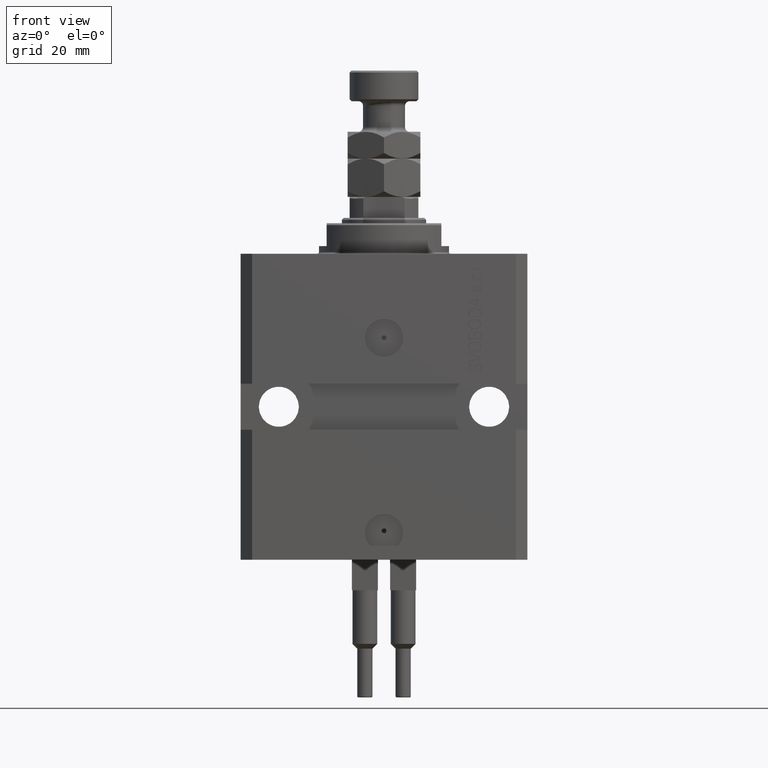
[diagram: clean part render]
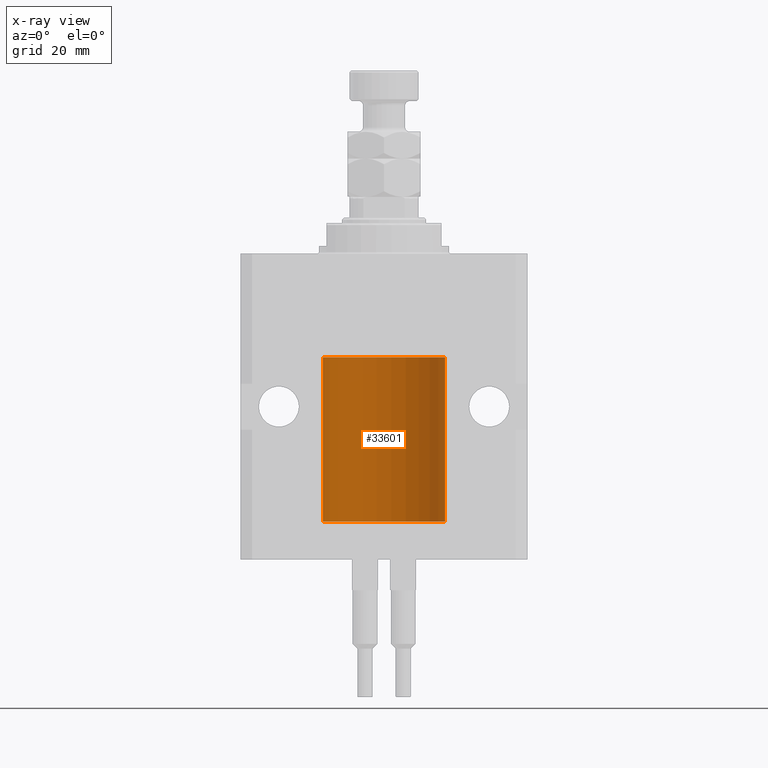
[diagram: x-ray — body ghosted, one internal face saturated and labeled with its STEP entity id]
A machine part, front view, then the same camera in x-ray: the body is ghosted and one INTERNAL B-rep face — a face not visible from any outside direction — is saturated and labeled: STEP entity #33601.
In plain terms, the highlighted cylindrical surface (partial cylindrical patch) has radius 16 mm, axis along (0, 0, 1).
Its self-contained STEP definition (entity closure, byte-faithful):
#167 = B_SPLINE_CURVE_WITH_KNOTS ( 'NONE', 3,
 ( #29941, #25955, #18704, #7254, #14724, #41418, #44888, #26444, #40922, #10258, #6763, #33922, #48639, #41657 ),
 .UNSPECIFIED., .F., .F.,
 ( 4, 2, 2, 2, 2, 2, 4 ),
 ( 9.902737362640428303E-19, 0.0002442776652680895785, 0.0004885553305361781812, 0.0009771106610723552782, 0.001221388326340464752, 0.001465665991608574008, 0.001954221322144763465 ),
 .UNSPECIFIED. ) ;
#708 = CIRCLE ( 'NONE', #12641, 16.00000000000000000 ) ;
#3318 = VECTOR ( 'NONE', #34361, 1000.000000000000000 ) ;
#4193 = CARTESIAN_POINT ( 'NONE',  ( -16.00000000000000000, 1.959434878635765131E-15, -70.09999999999999432 ) ) ;
#5071 = CARTESIAN_POINT ( 'NONE',  ( -16.00000000000000000, 1.959434878635765131E-15, -27.10000000000000142 ) ) ;
#5559 = VERTEX_POINT ( 'NONE', #12890 ) ;
#6156 = DIRECTION ( 'NONE',  ( 1.000000000000000000, 0.000000000000000000, 0.000000000000000000 ) ) ;
#6278 = LINE ( 'NONE', #13756, #13724 ) ;
#6763 = CARTESIAN_POINT ( 'NONE',  ( -15.99228023727723702, 0.5003781296993395911, -68.38347829554236057 ) ) ;
#7022 = ORIENTED_EDGE ( 'NONE', *, *, #43895, .T. ) ;
#7254 = CARTESIAN_POINT ( 'NONE',  ( -15.99707730059171240, 0.3150375992092334654, -67.45402333202571299 ) ) ;
#8320 = CARTESIAN_POINT ( 'NONE',  ( -16.00000000000000000, -9.346608026143465119E-15, -67.37500000000000000 ) ) ;
#8453 = CARTESIAN_POINT ( 'NONE',  ( 0.000000000000000000, 0.000000000000000000, -70.09999999999999432 ) ) ;
#9710 = AXIS2_PLACEMENT_3D ( 'NONE', #25100, #40314, #6156 ) ;
#10119 = EDGE_CURVE ( 'NONE', #36604, #35602, #708, .T. ) ;
#10258 = CARTESIAN_POINT ( 'NONE',  ( -15.99070426498502862, 0.5462220647145645813, -68.31460064614141459 ) ) ;
#11100 = ORIENTED_EDGE ( 'NONE', *, *, #20234, .T. ) ;
#12641 = AXIS2_PLACEMENT_3D ( 'NONE', #8453, #30883, #42846 ) ;
#12878 = ORIENTED_EDGE ( 'NONE', *, *, #20927, .F. ) ;
#12890 = CARTESIAN_POINT ( 'NONE',  ( -16.00000000000013145, 3.685127046438747128E-13, -68.62500000000343903 ) ) ;
#13461 = VERTEX_POINT ( 'NONE', #22770 ) ;
#13724 = VECTOR ( 'NONE', #48151, 1000.000000000000000 ) ;
#13756 = CARTESIAN_POINT ( 'NONE',  ( -16.00000000000000000, 1.959434878635765131E-15, -70.09999999999999432 ) ) ;
#14699 = CARTESIAN_POINT ( 'NONE',  ( 16.00000000000000000, 0.000000000000000000, -70.09999999999999432 ) ) ;
#14724 = CARTESIAN_POINT ( 'NONE',  ( -15.99548640841682712, 0.3843705577988820732, -67.50046628527007897 ) ) ;
#16226 = FACE_OUTER_BOUND ( 'NONE', #34783, .T. ) ;
#16679 = VECTOR ( 'NONE', #29917, 1000.000000000000000 ) ;
#18442 = LINE ( 'NONE', #14699, #16679 ) ;
#18681 = CARTESIAN_POINT ( 'NONE',  ( 16.00000000000000000, 0.000000000000000000, -70.09999999999999432 ) ) ;
#18704 = CARTESIAN_POINT ( 'NONE',  ( -15.99934216141748244, 0.1636497843296345067, -67.39126528029308361 ) ) ;
#19971 = CARTESIAN_POINT ( 'NONE',  ( 0.000000000000000000, 0.000000000000000000, -70.09999999999999432 ) ) ;
#20081 = EDGE_CURVE ( 'NONE', #35602, #5559, #20129, .T. ) ;
#20129 = LINE ( 'NONE', #4193, #3318 ) ;
#20234 = EDGE_CURVE ( 'NONE', #13461, #35984, #31986, .T. ) ;
#20927 = EDGE_CURVE ( 'NONE', #26950, #35984, #6278, .T. ) ;
#22770 = CARTESIAN_POINT ( 'NONE',  ( 16.00000000000000000, 0.000000000000000000, -27.10000000000000142 ) ) ;
#25100 = CARTESIAN_POINT ( 'NONE',  ( 0.000000000000000000, 0.000000000000000000, -27.10000000000000142 ) ) ;
#25955 = CARTESIAN_POINT ( 'NONE',  ( -16.00000000000000711, 0.08259886010189028405, -67.37500000000001421 ) ) ;
#26444 = CARTESIAN_POINT ( 'NONE',  ( -15.98778717651346426, 0.6250289588122136530, -68.08131585687053189 ) ) ;
#26723 = CYLINDRICAL_SURFACE ( 'NONE', #31699, 16.00000000000000000 ) ;
#26950 = VERTEX_POINT ( 'NONE', #8320 ) ;
#26964 = DIRECTION ( 'NONE',  ( -0.000000000000000000, -0.000000000000000000, 1.000000000000000000 ) ) ;
#28562 = ORIENTED_EDGE ( 'NONE', *, *, #20081, .F. ) ;
#29917 = DIRECTION ( 'NONE',  ( -0.000000000000000000, -0.000000000000000000, 1.000000000000000000 ) ) ;
#29941 = CARTESIAN_POINT ( 'NONE',  ( -16.00000000000000000, -9.346608026143465119E-15, -67.37500000000000000 ) ) ;
#30883 = DIRECTION ( 'NONE',  ( 0.000000000000000000, 0.000000000000000000, 1.000000000000000000 ) ) ;
#31699 = AXIS2_PLACEMENT_3D ( 'NONE', #19971, #26964, #34694 ) ;
#31986 = CIRCLE ( 'NONE', #9710, 16.00000000000000000 ) ;
#32638 = ORIENTED_EDGE ( 'NONE', *, *, #36498, .T. ) ;
#33601 = ADVANCED_FACE ( 'NONE', ( #16226 ), #26723, .F. ) ;
#33922 = CARTESIAN_POINT ( 'NONE',  ( -15.99711699979840951, 0.3253759916140645525, -68.55856151623176231 ) ) ;
#34361 = DIRECTION ( 'NONE',  ( -0.000000000000000000, -0.000000000000000000, 1.000000000000000000 ) ) ;
#34694 = DIRECTION ( 'NONE',  ( 1.000000000000000000, 0.000000000000000000, 0.000000000000000000 ) ) ;
#34783 = EDGE_LOOP ( 'NONE', ( #28562, #36457, #32638, #11100, #12878, #7022 ) ) ;
#35602 = VERTEX_POINT ( 'NONE', #39778 ) ;
#35984 = VERTEX_POINT ( 'NONE', #5071 ) ;
#36457 = ORIENTED_EDGE ( 'NONE', *, *, #10119, .F. ) ;
#36498 = EDGE_CURVE ( 'NONE', #36604, #13461, #18442, .T. ) ;
#36604 = VERTEX_POINT ( 'NONE', #18681 ) ;
#39778 = CARTESIAN_POINT ( 'NONE',  ( -16.00000000000000000, 1.959434878635765131E-15, -70.09999999999999432 ) ) ;
#40314 = DIRECTION ( 'NONE',  ( 0.000000000000000000, 0.000000000000000000, 1.000000000000000000 ) ) ;
#40922 = CARTESIAN_POINT ( 'NONE',  ( -15.98844267028591126, 0.6088369347963314970, -68.16324735024328163 ) ) ;
#41418 = CARTESIAN_POINT ( 'NONE',  ( -15.99070653155268040, 0.5573233280232966491, -67.67348148680505915 ) ) ;
#41657 = CARTESIAN_POINT ( 'NONE',  ( -16.00000000000013145, 3.685127046438747128E-13, -68.62500000000343903 ) ) ;
#42846 = DIRECTION ( 'NONE',  ( 1.000000000000000000, 0.000000000000000000, 0.000000000000000000 ) ) ;
#43895 = EDGE_CURVE ( 'NONE', #26950, #5559, #167, .T. ) ;
#44888 = CARTESIAN_POINT ( 'NONE',  ( -15.98779057735153586, 0.6249419637998054888, -67.83670145863507628 ) ) ;
#48151 = DIRECTION ( 'NONE',  ( -0.000000000000000000, -0.000000000000000000, 1.000000000000000000 ) ) ;
#48639 = CARTESIAN_POINT ( 'NONE',  ( -15.99999999999998934, 0.1631714642025807183, -68.62499999999984368 ) ) ;